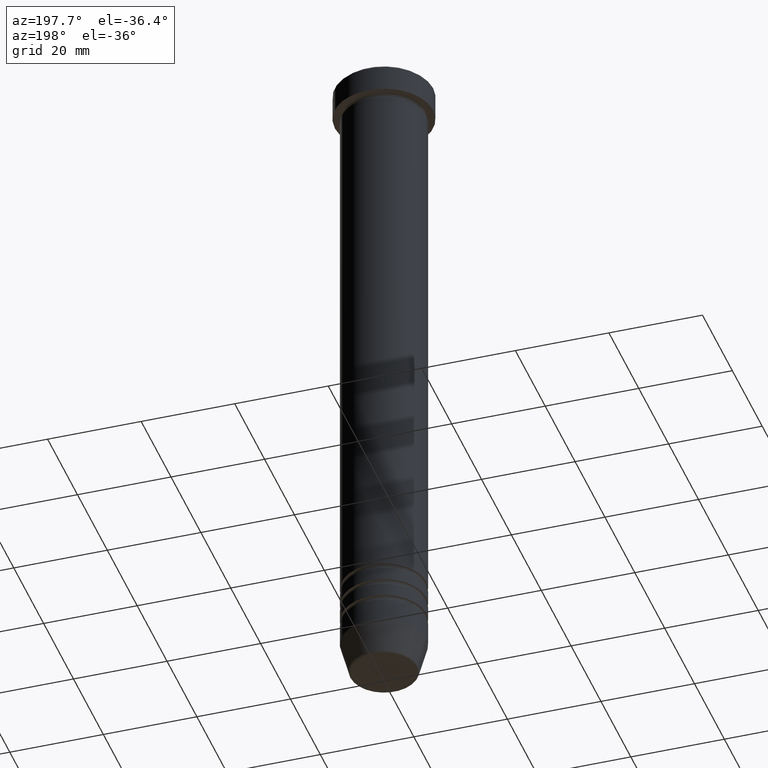
[diagram: clean part render]
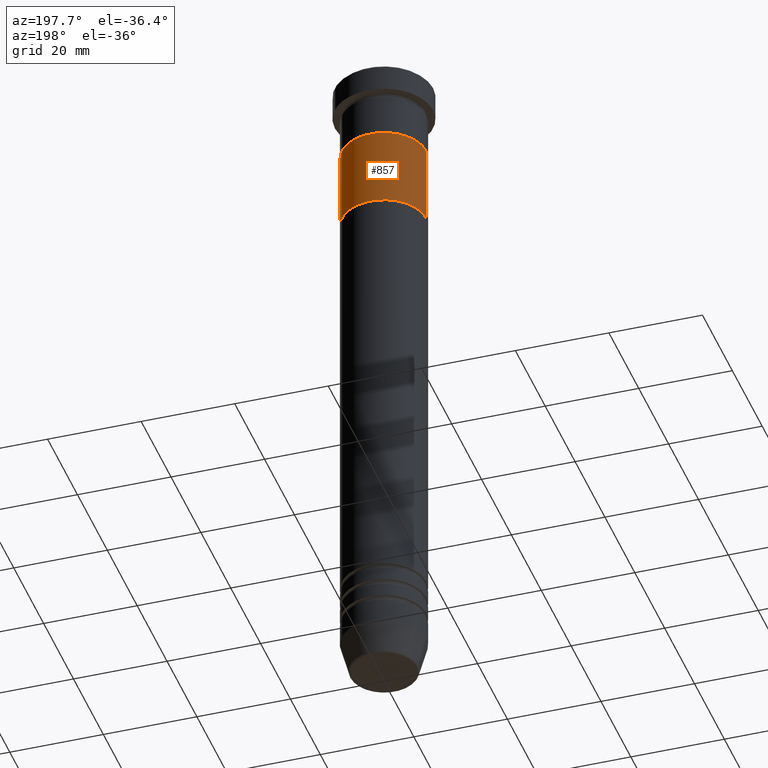
[diagram: same view with one face highlighted and labeled with its STEP entity id]
A machine part, auxiliary view. The second image highlights one B-rep face of the part: STEP entity #857.
In plain terms, the highlighted cylindrical surface (partial cylindrical patch) has radius 9 mm, axis along (-0, -0, 1).
Its self-contained STEP definition (entity closure, byte-faithful):
#51 = EDGE_CURVE ( 'NONE', #59, #151, #453, .T. ) ;
#58 = VECTOR ( 'NONE', #333, 1000.000000000000000 ) ;
#59 = VERTEX_POINT ( 'NONE', #73 ) ;
#73 = CARTESIAN_POINT ( 'NONE',  ( 9.000000000000000000, 0.000000000000000000, -33.00000000000000000 ) ) ;
#75 = DIRECTION ( 'NONE',  ( -1.000000000000000000, 0.000000000000000000, 0.000000000000000000 ) ) ;
#76 = FACE_OUTER_BOUND ( 'NONE', #831, .T. ) ;
#151 = VERTEX_POINT ( 'NONE', #1072 ) ;
#185 = EDGE_CURVE ( 'NONE', #758, #747, #1111, .T. ) ;
#192 = AXIS2_PLACEMENT_3D ( 'NONE', #691, #966, #882 ) ;
#251 = DIRECTION ( 'NONE',  ( -1.000000000000000000, 0.000000000000000000, 0.000000000000000000 ) ) ;
#254 = DIRECTION ( 'NONE',  ( -0.000000000000000000, -0.000000000000000000, 1.000000000000000000 ) ) ;
#333 = DIRECTION ( 'NONE',  ( -0.000000000000000000, -0.000000000000000000, 1.000000000000000000 ) ) ;
#393 = CARTESIAN_POINT ( 'NONE',  ( -9.000000000000000000, 1.102182119232617714E-15, -16.00000000000000000 ) ) ;
#412 = ORIENTED_EDGE ( 'NONE', *, *, #51, .F. ) ;
#420 = DIRECTION ( 'NONE',  ( 0.000000000000000000, 0.000000000000000000, -1.000000000000000000 ) ) ;
#453 = LINE ( 'NONE', #960, #58 ) ;
#501 = ORIENTED_EDGE ( 'NONE', *, *, #874, .F. ) ;
#589 = VECTOR ( 'NONE', #254, 1000.000000000000000 ) ;
#617 = CARTESIAN_POINT ( 'NONE',  ( 0.000000000000000000, 0.000000000000000000, -33.00000000000000000 ) ) ;
#687 = ORIENTED_EDGE ( 'NONE', *, *, #185, .T. ) ;
#691 = CARTESIAN_POINT ( 'NONE',  ( 0.000000000000000000, 0.000000000000000000, -33.00000000000000000 ) ) ;
#747 = VERTEX_POINT ( 'NONE', #393 ) ;
#748 = CARTESIAN_POINT ( 'NONE',  ( -9.000000000000000000, 1.102182119232617714E-15, -33.00000000000000000 ) ) ;
#758 = VERTEX_POINT ( 'NONE', #748 ) ;
#763 = CARTESIAN_POINT ( 'NONE',  ( 0.000000000000000000, 0.000000000000000000, -16.00000000000000000 ) ) ;
#803 = CIRCLE ( 'NONE', #889, 9.000000000000000000 ) ;
#826 = CIRCLE ( 'NONE', #981, 9.000000000000000000 ) ;
#831 = EDGE_LOOP ( 'NONE', ( #501, #687, #1125, #412 ) ) ;
#857 = ADVANCED_FACE ( 'NONE', ( #76 ), #885, .T. ) ;
#871 = DIRECTION ( 'NONE',  ( 0.000000000000000000, 0.000000000000000000, -1.000000000000000000 ) ) ;
#874 = EDGE_CURVE ( 'NONE', #758, #59, #826, .T. ) ;
#882 = DIRECTION ( 'NONE',  ( 1.000000000000000000, 0.000000000000000000, 0.000000000000000000 ) ) ;
#885 = CYLINDRICAL_SURFACE ( 'NONE', #192, 9.000000000000000000 ) ;
#889 = AXIS2_PLACEMENT_3D ( 'NONE', #763, #420, #75 ) ;
#926 = CARTESIAN_POINT ( 'NONE',  ( -9.000000000000000000, 1.102182119232617714E-15, -33.00000000000000000 ) ) ;
#960 = CARTESIAN_POINT ( 'NONE',  ( 9.000000000000000000, 0.000000000000000000, -33.00000000000000000 ) ) ;
#966 = DIRECTION ( 'NONE',  ( -0.000000000000000000, -0.000000000000000000, 1.000000000000000000 ) ) ;
#981 = AXIS2_PLACEMENT_3D ( 'NONE', #617, #871, #251 ) ;
#1031 = EDGE_CURVE ( 'NONE', #747, #151, #803, .T. ) ;
#1072 = CARTESIAN_POINT ( 'NONE',  ( 9.000000000000000000, 0.000000000000000000, -16.00000000000000000 ) ) ;
#1111 = LINE ( 'NONE', #926, #589 ) ;
#1125 = ORIENTED_EDGE ( 'NONE', *, *, #1031, .T. ) ;